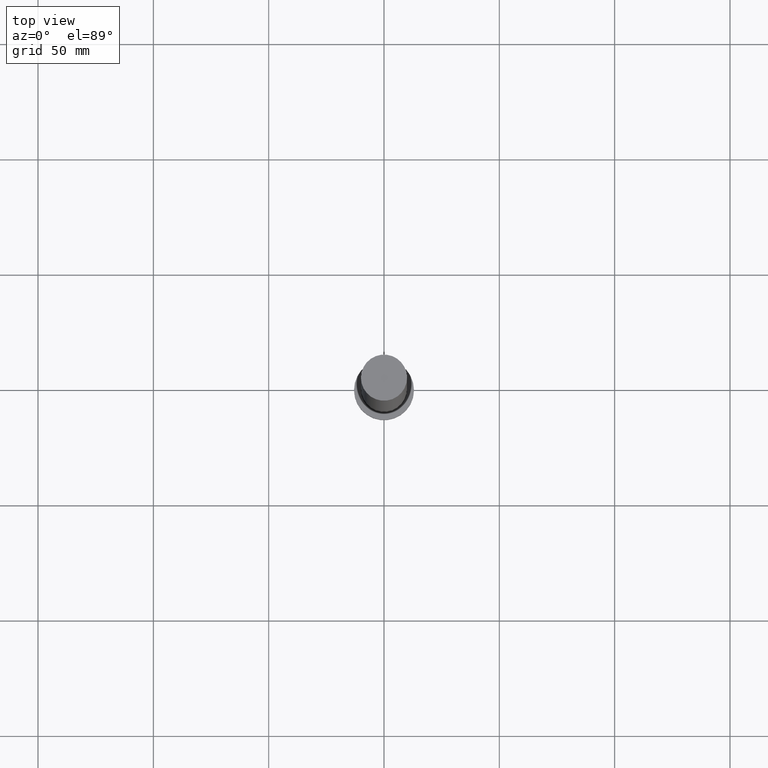
[diagram: clean part render]
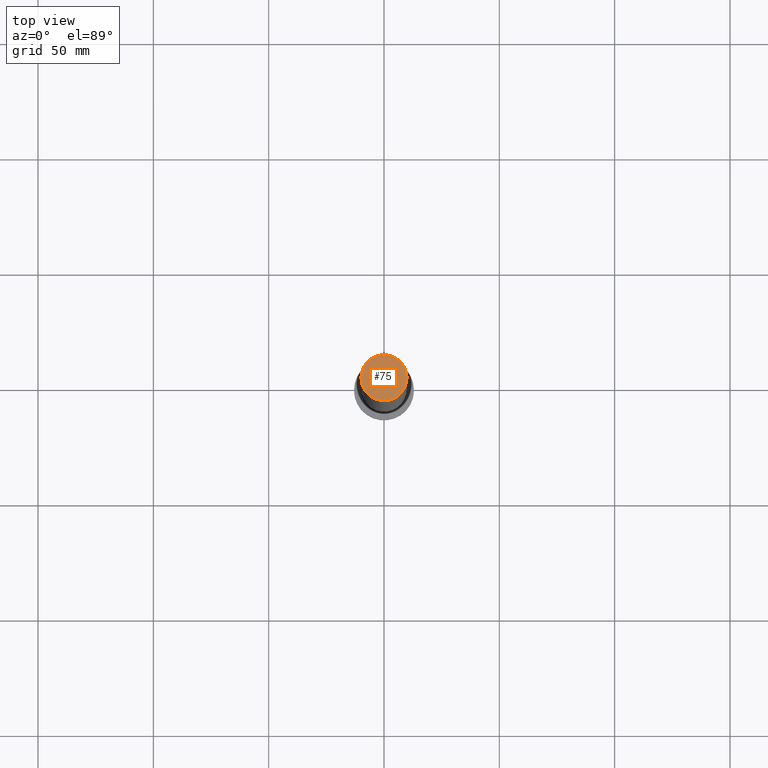
[diagram: same view with one face highlighted and labeled with its STEP entity id]
A machine part, top view. The second image highlights one B-rep face of the part: STEP entity #75.
In plain terms, the highlighted planar face has unit normal (0, 0, 1).
Its self-contained STEP definition (entity closure, byte-faithful):
#17 = CIRCLE ( 'NONE', #174, 10.00000000000000000 ) ;
#32 = EDGE_CURVE ( 'NONE', #42, #40, #17, .T. ) ;
#40 = VERTEX_POINT ( 'NONE', #148 ) ;
#41 = DIRECTION ( 'NONE',  ( 0.000000000000000000, 0.000000000000000000, 1.000000000000000000 ) ) ;
#42 = VERTEX_POINT ( 'NONE', #79 ) ;
#61 = DIRECTION ( 'NONE',  ( 1.000000000000000000, 0.000000000000000000, 0.000000000000000000 ) ) ;
#75 = ADVANCED_FACE ( 'NONE', ( #182 ), #159, .T. ) ;
#79 = CARTESIAN_POINT ( 'NONE',  ( -10.00000000000000000, 0.000000000000000000, 315.0000000000000000 ) ) ;
#80 = CARTESIAN_POINT ( 'NONE',  ( 0.000000000000000000, 0.000000000000000000, 315.0000000000000000 ) ) ;
#82 = AXIS2_PLACEMENT_3D ( 'NONE', #80, #241, #97 ) ;
#97 = DIRECTION ( 'NONE',  ( 1.000000000000000000, 0.000000000000000000, -0.000000000000000000 ) ) ;
#100 = ORIENTED_EDGE ( 'NONE', *, *, #32, .T. ) ;
#129 = EDGE_LOOP ( 'NONE', ( #100, #132 ) ) ;
#132 = ORIENTED_EDGE ( 'NONE', *, *, #242, .T. ) ;
#142 = CIRCLE ( 'NONE', #173, 10.00000000000000000 ) ;
#148 = CARTESIAN_POINT ( 'NONE',  ( 10.00000000000000000, 1.224646799147353256E-15, 315.0000000000000000 ) ) ;
#159 = PLANE ( 'NONE',  #82 ) ;
#165 = CARTESIAN_POINT ( 'NONE',  ( 0.000000000000000000, 0.000000000000000000, 315.0000000000000000 ) ) ;
#173 = AXIS2_PLACEMENT_3D ( 'NONE', #200, #41, #61 ) ;
#174 = AXIS2_PLACEMENT_3D ( 'NONE', #165, #247, #188 ) ;
#182 = FACE_OUTER_BOUND ( 'NONE', #129, .T. ) ;
#188 = DIRECTION ( 'NONE',  ( 1.000000000000000000, 0.000000000000000000, 0.000000000000000000 ) ) ;
#200 = CARTESIAN_POINT ( 'NONE',  ( 0.000000000000000000, 0.000000000000000000, 315.0000000000000000 ) ) ;
#241 = DIRECTION ( 'NONE',  ( 0.000000000000000000, 0.000000000000000000, 1.000000000000000000 ) ) ;
#242 = EDGE_CURVE ( 'NONE', #40, #42, #142, .T. ) ;
#247 = DIRECTION ( 'NONE',  ( 0.000000000000000000, 0.000000000000000000, 1.000000000000000000 ) ) ;